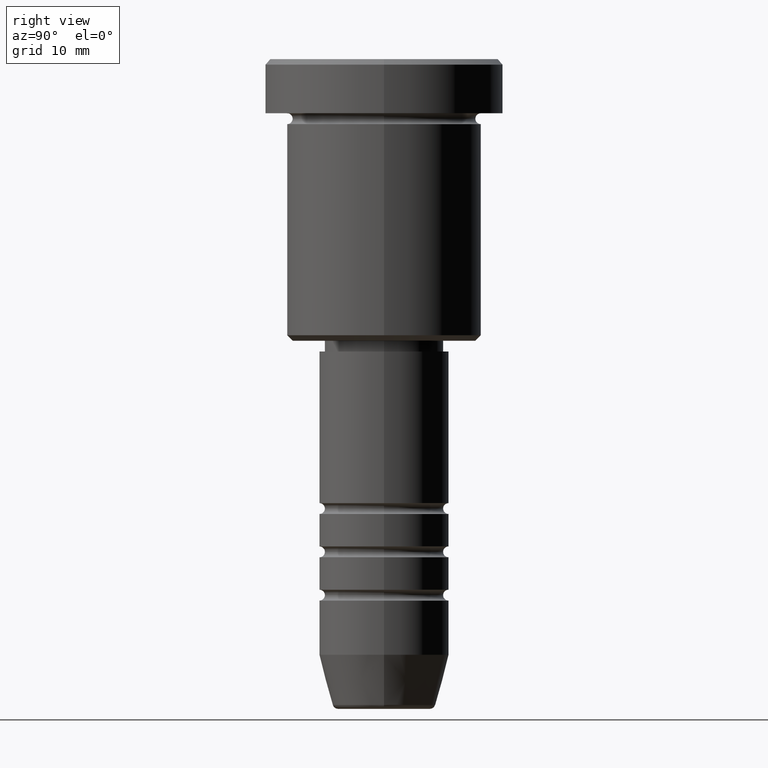
[diagram: clean part render]
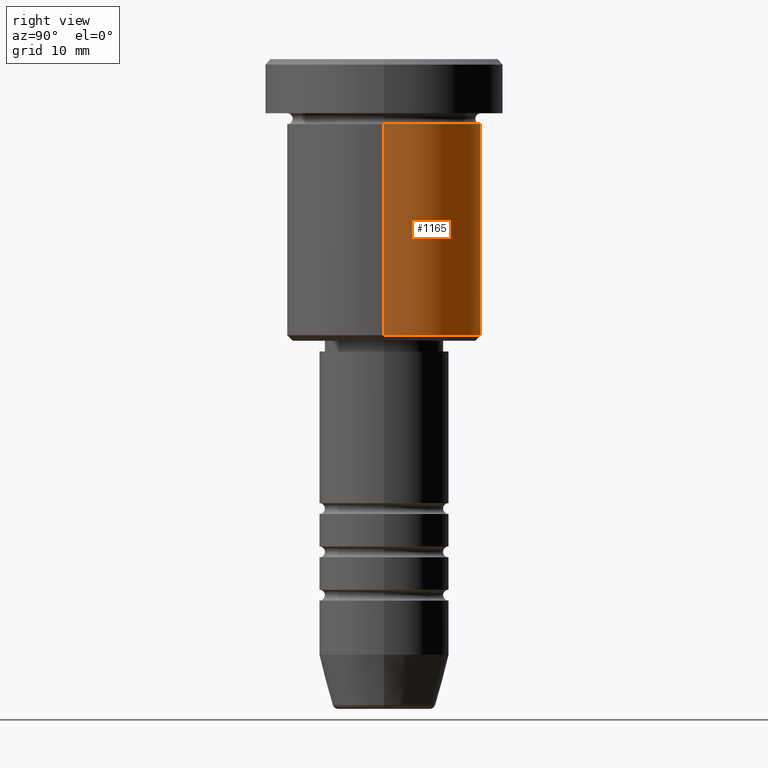
[diagram: same view with one face highlighted and labeled with its STEP entity id]
A machine part, right view. The second image highlights one B-rep face of the part: STEP entity #1165.
In plain terms, the highlighted cylindrical surface (partial cylindrical patch) has radius 9 mm, axis along (-0, -0, 1).
Its self-contained STEP definition (entity closure, byte-faithful):
#2 = DIRECTION ( 'NONE',  ( -0.000000000000000000, -0.000000000000000000, 1.000000000000000000 ) ) ;
#50 = CIRCLE ( 'NONE', #247, 9.000000000000000000 ) ;
#70 = CIRCLE ( 'NONE', #729, 9.000000000000000000 ) ;
#84 = CARTESIAN_POINT ( 'NONE',  ( 0.000000000000000000, 0.000000000000000000, -25.50000000000000711 ) ) ;
#86 = ORIENTED_EDGE ( 'NONE', *, *, #258, .T. ) ;
#87 = CARTESIAN_POINT ( 'NONE',  ( 9.000000000000000000, 0.000000000000000000, -6.000000000000000000 ) ) ;
#187 = DIRECTION ( 'NONE',  ( -0.000000000000000000, -0.000000000000000000, 1.000000000000000000 ) ) ;
#213 = EDGE_CURVE ( 'NONE', #585, #711, #70, .T. ) ;
#234 = VERTEX_POINT ( 'NONE', #716 ) ;
#247 = AXIS2_PLACEMENT_3D ( 'NONE', #921, #187, #543 ) ;
#250 = ORIENTED_EDGE ( 'NONE', *, *, #573, .F. ) ;
#258 = EDGE_CURVE ( 'NONE', #711, #234, #911, .T. ) ;
#259 = ORIENTED_EDGE ( 'NONE', *, *, #406, .F. ) ;
#301 = DIRECTION ( 'NONE',  ( -0.000000000000000000, -0.000000000000000000, 1.000000000000000000 ) ) ;
#309 = DIRECTION ( 'NONE',  ( 1.000000000000000000, 0.000000000000000000, 0.000000000000000000 ) ) ;
#369 = AXIS2_PLACEMENT_3D ( 'NONE', #569, #301, #309 ) ;
#406 = EDGE_CURVE ( 'NONE', #585, #998, #577, .T. ) ;
#441 = CARTESIAN_POINT ( 'NONE',  ( -9.000000000000000000, 1.102182119232617714E-15, 0.000000000000000000 ) ) ;
#449 = DIRECTION ( 'NONE',  ( -1.000000000000000000, 0.000000000000000000, 0.000000000000000000 ) ) ;
#478 = CARTESIAN_POINT ( 'NONE',  ( -9.000000000000000000, 1.102182119232617714E-15, -25.50000000000000711 ) ) ;
#543 = DIRECTION ( 'NONE',  ( 1.000000000000000000, 0.000000000000000000, 0.000000000000000000 ) ) ;
#547 = DIRECTION ( 'NONE',  ( -0.000000000000000000, -0.000000000000000000, 1.000000000000000000 ) ) ;
#569 = CARTESIAN_POINT ( 'NONE',  ( 0.000000000000000000, 0.000000000000000000, 0.000000000000000000 ) ) ;
#573 = EDGE_CURVE ( 'NONE', #998, #234, #50, .T. ) ;
#577 = LINE ( 'NONE', #1027, #710 ) ;
#585 = VERTEX_POINT ( 'NONE', #724 ) ;
#667 = DIRECTION ( 'NONE',  ( -0.000000000000000000, -0.000000000000000000, 1.000000000000000000 ) ) ;
#710 = VECTOR ( 'NONE', #667, 1000.000000000000000 ) ;
#711 = VERTEX_POINT ( 'NONE', #478 ) ;
#716 = CARTESIAN_POINT ( 'NONE',  ( -9.000000000000000000, 1.102182119232617714E-15, -6.000000000000000000 ) ) ;
#724 = CARTESIAN_POINT ( 'NONE',  ( 9.000000000000000000, 0.000000000000000000, -25.50000000000000711 ) ) ;
#729 = AXIS2_PLACEMENT_3D ( 'NONE', #84, #547, #449 ) ;
#752 = CYLINDRICAL_SURFACE ( 'NONE', #369, 9.000000000000000000 ) ;
#760 = FACE_OUTER_BOUND ( 'NONE', #1167, .T. ) ;
#911 = LINE ( 'NONE', #441, #1138 ) ;
#921 = CARTESIAN_POINT ( 'NONE',  ( 0.000000000000000000, 0.000000000000000000, -6.000000000000000000 ) ) ;
#998 = VERTEX_POINT ( 'NONE', #87 ) ;
#1027 = CARTESIAN_POINT ( 'NONE',  ( 9.000000000000000000, 0.000000000000000000, 0.000000000000000000 ) ) ;
#1075 = ORIENTED_EDGE ( 'NONE', *, *, #213, .T. ) ;
#1138 = VECTOR ( 'NONE', #2, 1000.000000000000000 ) ;
#1165 = ADVANCED_FACE ( 'NONE', ( #760 ), #752, .T. ) ;
#1167 = EDGE_LOOP ( 'NONE', ( #1075, #86, #250, #259 ) ) ;